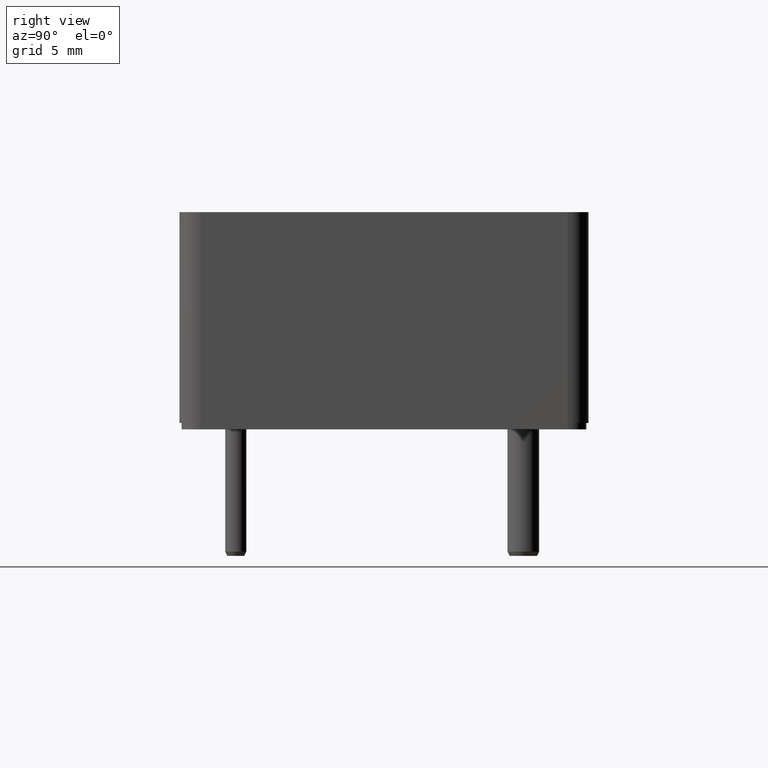
[diagram: clean part render]
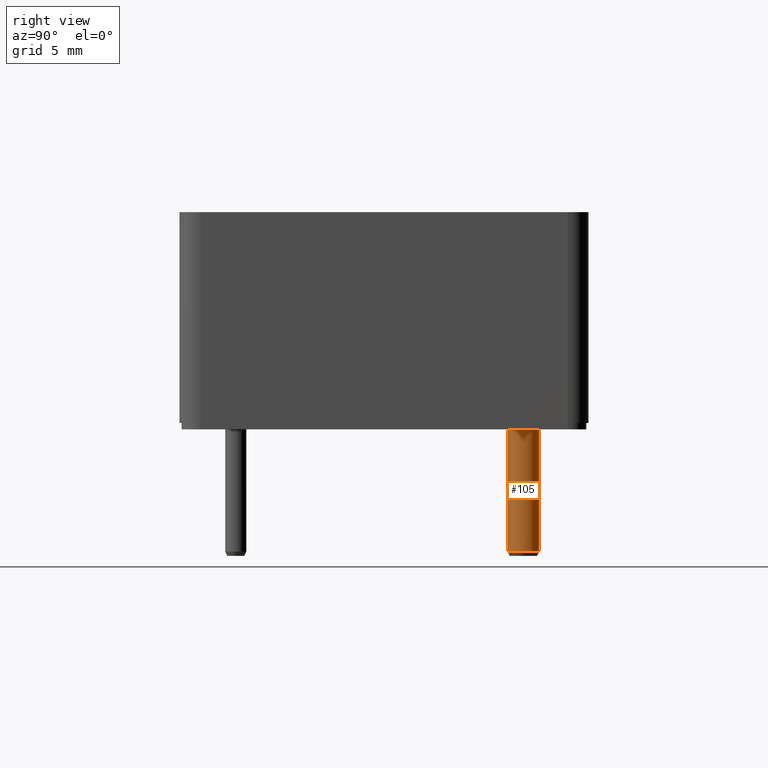
[diagram: same view with one face highlighted and labeled with its STEP entity id]
A machine part, right view. The second image highlights one B-rep face of the part: STEP entity #105.
In plain terms, the highlighted cylindrical surface (bore or boss wall) has radius 0.75 mm, axis along (0, 0, -1).
Its self-contained STEP definition (entity closure, byte-faithful):
#105=ADVANCED_FACE('',(#490,#492),#494,.T.);
#490=FACE_OUTER_BOUND('',#491,.T.);
#491=EDGE_LOOP('',(#776));
#492=FACE_OUTER_BOUND('',#493,.T.);
#493=EDGE_LOOP('',(#777));
#494=CYLINDRICAL_SURFACE('',#495,0.75);
#495=AXIS2_PLACEMENT_3D('',#496,#497,#498);
#496=CARTESIAN_POINT('',(7.46,6.61,9.13586512163925E-16));
#497=DIRECTION('',(1.22464679914735E-16,0.,-1.));
#498=DIRECTION('',(-6.12323399573676E-17,1.,-7.49879891330926E-33));
#776=ORIENTED_EDGE('',*,*,#892,.T.);
#777=ORIENTED_EDGE('',*,*,#903,.F.);
#892=EDGE_CURVE('',#966,#966,#967,.T.);
#903=EDGE_CURVE('',#988,#988,#989,.T.);
#966=VERTEX_POINT('',#1102);
#967=CIRCLE('',#1103,0.75);
#988=VERTEX_POINT('',#1157);
#989=CIRCLE('',#1158,0.75);
#1102=CARTESIAN_POINT('',(7.46,7.36,9.13586512163924E-16));
#1103=AXIS2_PLACEMENT_3D('',#1104,#1105,#1106);
#1104=CARTESIAN_POINT('',(7.46,6.61,9.13586512163923E-16));
#1105=DIRECTION('',(1.22464679914735E-16,0.,-1.));
#1106=DIRECTION('',(0.,1.,0.));
#1157=CARTESIAN_POINT('',(7.46,7.36,-5.8));
#1158=AXIS2_PLACEMENT_3D('',#1159,#1160,#1161);
#1159=CARTESIAN_POINT('',(7.46,6.61,-5.8));
#1160=DIRECTION('',(1.22464679914735E-16,0.,-1.));
#1161=DIRECTION('',(2.44929359829471E-16,1.,2.99951956532371E-32));